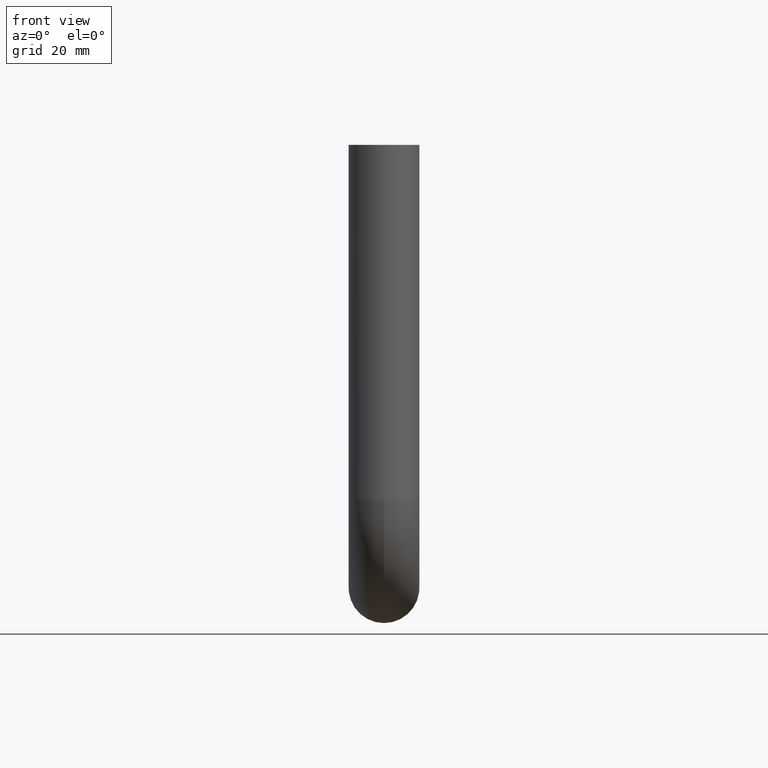
[diagram: clean part render]
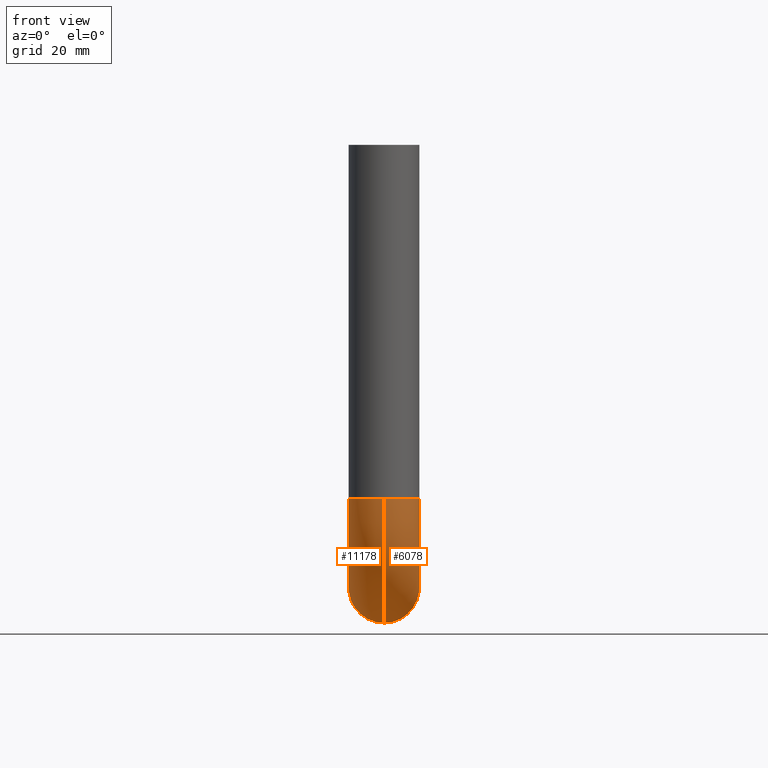
[diagram: same view with one multi-face feature highlighted, each face labeled with its STEP entity id]
A machine part, front view. The highlighted faces form ONE feature: a constant-radius fillet chain: 2 tangent blend faces with common blend radius 6 mm. The faces share edges in the B-rep.
Their STEP definitions:
[1] entity #6078 (Torus):
#341 = EDGE_CURVE ( 'NONE', #6390, #13415, #13676, .T. ) ;
#577 = CARTESIAN_POINT ( 'NONE',  ( 0.0000000000000000000, -6.000000000000001800, -59.99999999999989300 ) ) ;
#939 = EDGE_CURVE ( 'NONE', #12681, #10794, #4036, .T. ) ;
#1374 = CARTESIAN_POINT ( 'NONE',  ( 6.000000000000000900, 0.0000000000000000000, -59.99999999999989300 ) ) ;
#1616 = DIRECTION ( 'NONE',  ( 0.0000000000000000000, 0.0000000000000000000, 1.000000000000000000 ) ) ;
#1826 = DIRECTION ( 'NONE',  ( 1.000000000000000000, 0.0000000000000000000, 0.0000000000000000000 ) ) ;
#2103 = DIRECTION ( 'NONE',  ( 1.000000000000000000, 0.0000000000000000000, 0.0000000000000000000 ) ) ;
#2400 = CARTESIAN_POINT ( 'NONE',  ( 7.347880794884114800E-016, 15.00000000000018700, -81.00000000000001400 ) ) ;
#2717 = ORIENTED_EDGE ( 'NONE', *, *, #7891, .F. ) ;
#2774 = CARTESIAN_POINT ( 'NONE',  ( 0.0000000000000000000, 15.00000000000002000, -69.00000000000000000 ) ) ;
#2860 = TOROIDAL_SURFACE ( 'NONE', #6316, 15.00000000000000000, 6.000000000000000900 ) ;
#3034 = FACE_OUTER_BOUND ( 'NONE', #3748, .T. ) ;
#3036 = CIRCLE ( 'NONE', #13271, 6.000000000000000900 ) ;
#3123 = DIRECTION ( 'NONE',  ( 0.0000000000000000000, 0.0000000000000000000, -1.000000000000000000 ) ) ;
#3748 = EDGE_LOOP ( 'NONE', ( #12511, #14329, #7287, #5630, #2717 ) ) ;
#4036 = CIRCLE ( 'NONE', #12453, 8.999999999999994700 ) ;
#4455 = CIRCLE ( 'NONE', #9214, 21.00000000000000400 ) ;
#4827 = CIRCLE ( 'NONE', #5586, 6.000000000000000900 ) ;
#5143 = DIRECTION ( 'NONE',  ( 0.0000000000000000000, 0.0000000000000000000, 1.000000000000000000 ) ) ;
#5586 = AXIS2_PLACEMENT_3D ( 'NONE', #8152, #12763, #6070 ) ;
#5630 = ORIENTED_EDGE ( 'NONE', *, *, #939, .F. ) ;
#6070 = DIRECTION ( 'NONE',  ( 1.000000000000000000, 0.0000000000000000000, 0.0000000000000000000 ) ) ;
#6078 = ADVANCED_FACE ( 'NONE', ( #3034 ), #2860, .T. ) ;
#6316 = AXIS2_PLACEMENT_3D ( 'NONE', #11852, #8532, #13056 ) ;
#6390 = VERTEX_POINT ( 'NONE', #577 ) ;
#7208 = AXIS2_PLACEMENT_3D ( 'NONE', #13891, #1616, #11949 ) ;
#7287 = ORIENTED_EDGE ( 'NONE', *, *, #9213, .T. ) ;
#7498 = CARTESIAN_POINT ( 'NONE',  ( -7.347880794884120700E-016, 15.00000000000000000, -60.00000000000000000 ) ) ;
#7592 = DIRECTION ( 'NONE',  ( 1.000000000000000000, 0.0000000000000000000, 0.0000000000000000000 ) ) ;
#7683 = DIRECTION ( 'NONE',  ( 0.0000000000000000000, 0.0000000000000000000, -1.000000000000000000 ) ) ;
#7891 = EDGE_CURVE ( 'NONE', #13415, #12681, #3036, .T. ) ;
#8152 = CARTESIAN_POINT ( 'NONE',  ( 0.0000000000000000000, 15.00000000000010300, -75.00000000000001400 ) ) ;
#8532 = DIRECTION ( 'NONE',  ( 1.000000000000000000, 0.0000000000000000000, 0.0000000000000000000 ) ) ;
#8547 = CARTESIAN_POINT ( 'NONE',  ( 0.0000000000000000000, 0.0000000000000000000, -59.99999999999989300 ) ) ;
#8684 = EDGE_CURVE ( 'NONE', #6390, #13984, #4455, .T. ) ;
#9213 = EDGE_CURVE ( 'NONE', #13984, #10794, #4827, .T. ) ;
#9214 = AXIS2_PLACEMENT_3D ( 'NONE', #11151, #2103, #7683 ) ;
#10794 = VERTEX_POINT ( 'NONE', #2774 ) ;
#11151 = CARTESIAN_POINT ( 'NONE',  ( 0.0000000000000000000, 15.00000000000000000, -60.00000000000000000 ) ) ;
#11852 = CARTESIAN_POINT ( 'NONE',  ( 0.0000000000000000000, 15.00000000000000000, -60.00000000000000000 ) ) ;
#11949 = DIRECTION ( 'NONE',  ( 1.000000000000000000, 0.0000000000000000000, 0.0000000000000000000 ) ) ;
#12006 = CARTESIAN_POINT ( 'NONE',  ( -7.347880794884119700E-016, 6.000000000000000900, -59.99999999999989300 ) ) ;
#12453 = AXIS2_PLACEMENT_3D ( 'NONE', #7498, #7592, #3123 ) ;
#12511 = ORIENTED_EDGE ( 'NONE', *, *, #341, .F. ) ;
#12681 = VERTEX_POINT ( 'NONE', #12006 ) ;
#12763 = DIRECTION ( 'NONE',  ( 0.0000000000000000000, -1.000000000000000000, -1.392757777031960500E-014 ) ) ;
#13056 = DIRECTION ( 'NONE',  ( 0.0000000000000000000, 0.0000000000000000000, -1.000000000000000000 ) ) ;
#13271 = AXIS2_PLACEMENT_3D ( 'NONE', #8547, #5143, #1826 ) ;
#13415 = VERTEX_POINT ( 'NONE', #1374 ) ;
#13676 = CIRCLE ( 'NONE', #7208, 6.000000000000000900 ) ;
#13891 = CARTESIAN_POINT ( 'NONE',  ( 0.0000000000000000000, 0.0000000000000000000, -59.99999999999989300 ) ) ;
#13984 = VERTEX_POINT ( 'NONE', #2400 ) ;
#14329 = ORIENTED_EDGE ( 'NONE', *, *, #8684, .T. ) ;
[2] entity #11178 (Torus):
#156 = DIRECTION ( 'NONE',  ( 1.000000000000000000, 0.0000000000000000000, 0.0000000000000000000 ) ) ;
#460 = DIRECTION ( 'NONE',  ( 1.000000000000000000, 0.0000000000000000000, 0.0000000000000000000 ) ) ;
#544 = EDGE_CURVE ( 'NONE', #12681, #10943, #8227, .T. ) ;
#577 = CARTESIAN_POINT ( 'NONE',  ( 0.0000000000000000000, -6.000000000000001800, -59.99999999999989300 ) ) ;
#939 = EDGE_CURVE ( 'NONE', #12681, #10794, #4036, .T. ) ;
#1393 = DIRECTION ( 'NONE',  ( 0.0000000000000000000, 0.0000000000000000000, 1.000000000000000000 ) ) ;
#1835 = EDGE_CURVE ( 'NONE', #10943, #6390, #10648, .T. ) ;
#1849 = CARTESIAN_POINT ( 'NONE',  ( 0.0000000000000000000, 0.0000000000000000000, -59.99999999999989300 ) ) ;
#2103 = DIRECTION ( 'NONE',  ( 1.000000000000000000, 0.0000000000000000000, 0.0000000000000000000 ) ) ;
#2166 = ORIENTED_EDGE ( 'NONE', *, *, #2294, .T. ) ;
#2294 = EDGE_CURVE ( 'NONE', #10794, #13984, #9064, .T. ) ;
#2362 = CARTESIAN_POINT ( 'NONE',  ( 0.0000000000000000000, 15.00000000000000000, -60.00000000000000000 ) ) ;
#2400 = CARTESIAN_POINT ( 'NONE',  ( 7.347880794884114800E-016, 15.00000000000018700, -81.00000000000001400 ) ) ;
#2774 = CARTESIAN_POINT ( 'NONE',  ( 0.0000000000000000000, 15.00000000000002000, -69.00000000000000000 ) ) ;
#2849 = AXIS2_PLACEMENT_3D ( 'NONE', #8102, #12810, #460 ) ;
#3119 = AXIS2_PLACEMENT_3D ( 'NONE', #1849, #12845, #10703 ) ;
#3123 = DIRECTION ( 'NONE',  ( 0.0000000000000000000, 0.0000000000000000000, -1.000000000000000000 ) ) ;
#4036 = CIRCLE ( 'NONE', #12453, 8.999999999999994700 ) ;
#4323 = AXIS2_PLACEMENT_3D ( 'NONE', #9177, #1393, #8202 ) ;
#4455 = CIRCLE ( 'NONE', #9214, 21.00000000000000400 ) ;
#5173 = ORIENTED_EDGE ( 'NONE', *, *, #939, .T. ) ;
#6390 = VERTEX_POINT ( 'NONE', #577 ) ;
#7498 = CARTESIAN_POINT ( 'NONE',  ( -7.347880794884120700E-016, 15.00000000000000000, -60.00000000000000000 ) ) ;
#7537 = AXIS2_PLACEMENT_3D ( 'NONE', #2362, #156, #11374 ) ;
#7592 = DIRECTION ( 'NONE',  ( 1.000000000000000000, 0.0000000000000000000, 0.0000000000000000000 ) ) ;
#7683 = DIRECTION ( 'NONE',  ( 0.0000000000000000000, 0.0000000000000000000, -1.000000000000000000 ) ) ;
#8102 = CARTESIAN_POINT ( 'NONE',  ( 0.0000000000000000000, 15.00000000000010300, -75.00000000000001400 ) ) ;
#8202 = DIRECTION ( 'NONE',  ( 1.000000000000000000, 0.0000000000000000000, 0.0000000000000000000 ) ) ;
#8227 = CIRCLE ( 'NONE', #3119, 6.000000000000000900 ) ;
#8285 = ORIENTED_EDGE ( 'NONE', *, *, #1835, .F. ) ;
#8684 = EDGE_CURVE ( 'NONE', #6390, #13984, #4455, .T. ) ;
#9064 = CIRCLE ( 'NONE', #2849, 6.000000000000000900 ) ;
#9177 = CARTESIAN_POINT ( 'NONE',  ( 0.0000000000000000000, 0.0000000000000000000, -59.99999999999989300 ) ) ;
#9214 = AXIS2_PLACEMENT_3D ( 'NONE', #11151, #2103, #7683 ) ;
#10053 = EDGE_LOOP ( 'NONE', ( #14312, #8285, #11087, #5173, #2166 ) ) ;
#10648 = CIRCLE ( 'NONE', #4323, 6.000000000000000900 ) ;
#10703 = DIRECTION ( 'NONE',  ( 1.000000000000000000, 0.0000000000000000000, 0.0000000000000000000 ) ) ;
#10794 = VERTEX_POINT ( 'NONE', #2774 ) ;
#10943 = VERTEX_POINT ( 'NONE', #14204 ) ;
#11087 = ORIENTED_EDGE ( 'NONE', *, *, #544, .F. ) ;
#11151 = CARTESIAN_POINT ( 'NONE',  ( 0.0000000000000000000, 15.00000000000000000, -60.00000000000000000 ) ) ;
#11178 = ADVANCED_FACE ( 'NONE', ( #12998 ), #13349, .T. ) ;
#11374 = DIRECTION ( 'NONE',  ( 0.0000000000000000000, 0.0000000000000000000, -1.000000000000000000 ) ) ;
#12006 = CARTESIAN_POINT ( 'NONE',  ( -7.347880794884119700E-016, 6.000000000000000900, -59.99999999999989300 ) ) ;
#12453 = AXIS2_PLACEMENT_3D ( 'NONE', #7498, #7592, #3123 ) ;
#12681 = VERTEX_POINT ( 'NONE', #12006 ) ;
#12810 = DIRECTION ( 'NONE',  ( 0.0000000000000000000, -1.000000000000000000, -1.392757777031960500E-014 ) ) ;
#12845 = DIRECTION ( 'NONE',  ( 0.0000000000000000000, 0.0000000000000000000, 1.000000000000000000 ) ) ;
#12998 = FACE_OUTER_BOUND ( 'NONE', #10053, .T. ) ;
#13349 = TOROIDAL_SURFACE ( 'NONE', #7537, 15.00000000000000000, 6.000000000000000900 ) ;
#13984 = VERTEX_POINT ( 'NONE', #2400 ) ;
#14204 = CARTESIAN_POINT ( 'NONE',  ( -6.000000000000000900, 7.347880794884120700E-016, -59.99999999999989300 ) ) ;
#14312 = ORIENTED_EDGE ( 'NONE', *, *, #8684, .F. ) ;